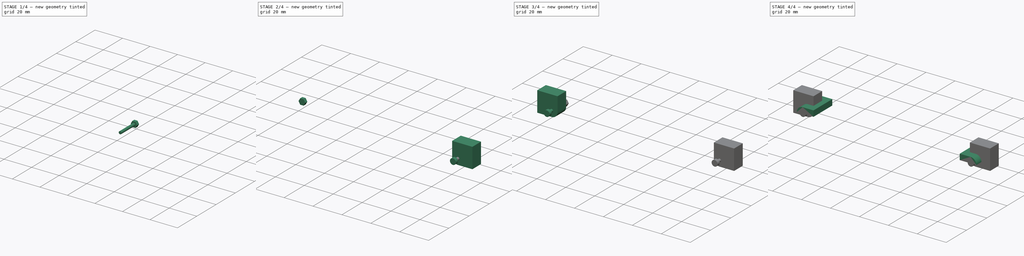
[diagram: build sequence overview — one tinted view per stage of 4, left to right]
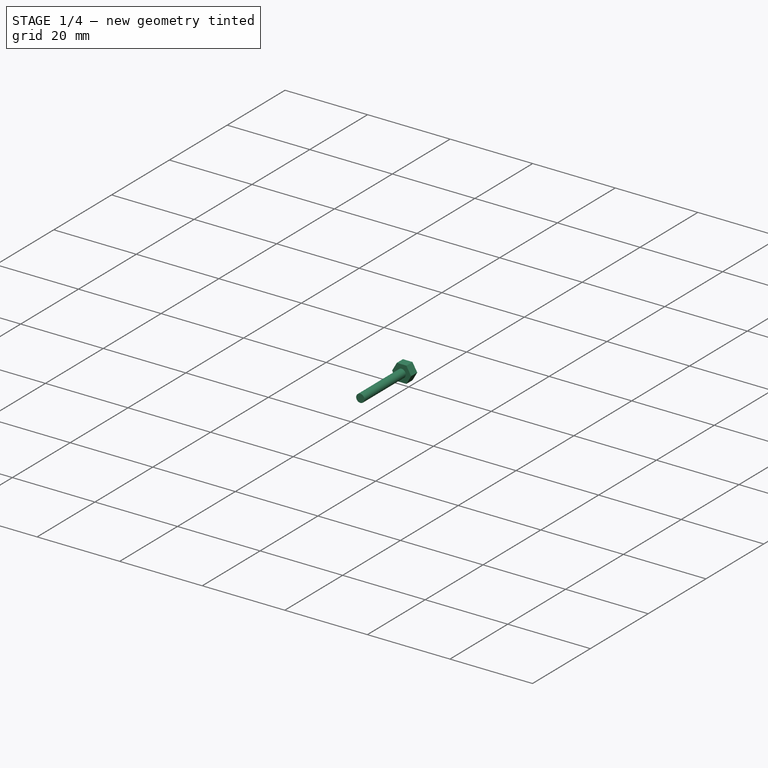
[diagram: stage 1 of 4 — iso view after this stage's code; geometry added in this stage tinted green]
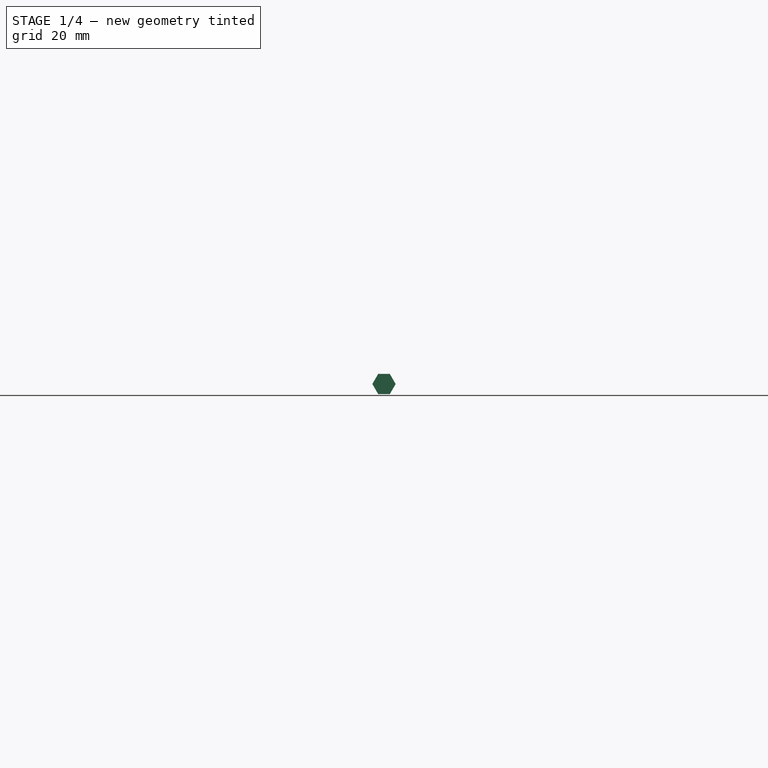
[diagram: stage 1 of 4 — front view after this stage's code; geometry added in this stage tinted green]
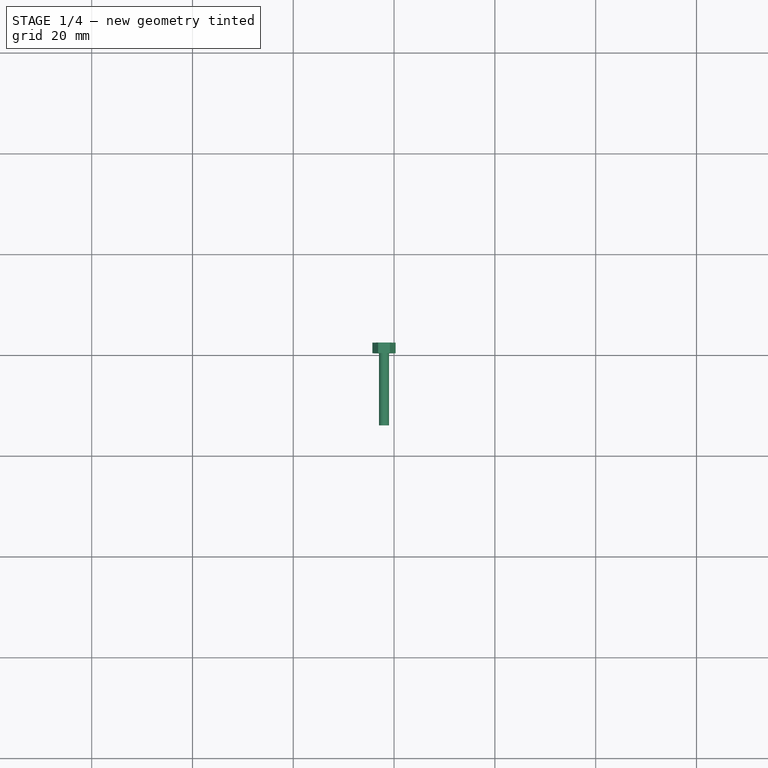
[diagram: stage 1 of 4 — top view after this stage's code; geometry added in this stage tinted green]
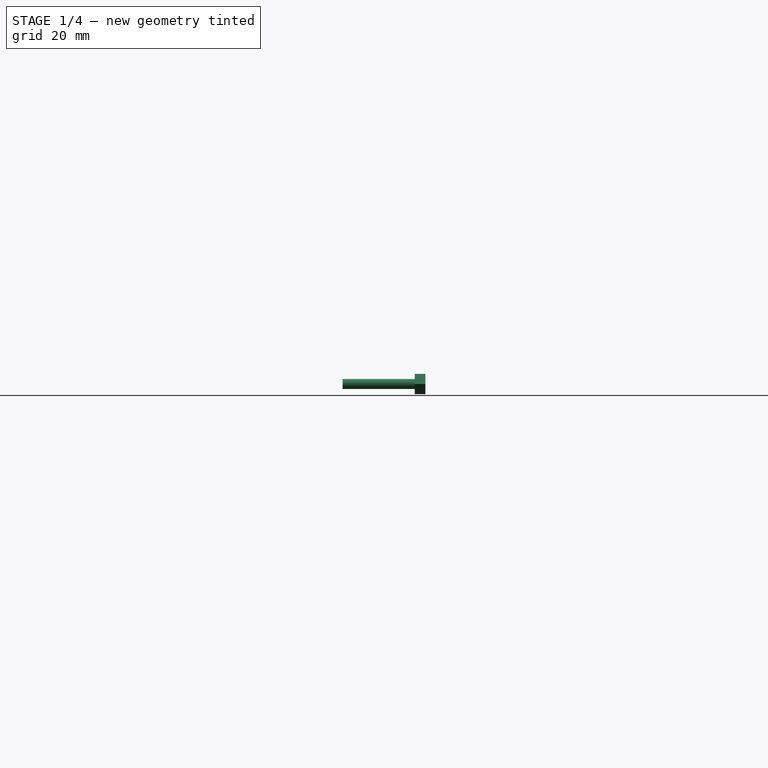
[diagram: stage 1 of 4 — right view after this stage's code; geometry added in this stage tinted green]
FCSTD DOCUMENT  (FreeCAD 0.18R15969 (Git))
Label: feature_latch
License: All rights reserved
LicenseURL: http://en.wikipedia.org/wiki/All_rights_reserved
objects: Sketcher::SketchObject×10, PartDesign::Pad×10, PartDesign::Body×4
note: 34 computed .brp shape members not serialized (recipe doc carries the construction recipe); baked Part::Feature solids carry a one-line shape summary decoded from their .brp

FEATURE [PartDesign::Body] Body002  label="feature_sidelatch_sub_A"
  Group = -> [Sketch002,Pad002,Sketch003,Pad003,Sketch004,Pad004,Sketch005,Pad005]
  Origin = -> Origin002
  Tip = -> Pad005
FEATURE [Sketcher::SketchObject] Sketch007
  AttachmentOffset = pos=(0,0,-2.5) rot=(0,0,1;0rad)
  MapMode = 5
  Placement = pos=(0,2.5,6e-16) rot=(1,0,0;1.5708rad)
  Support = -> [XZ_Plane003]
  sketch-geometry (7):
    g0: LineSegment StartX=59.1547 StartY=-2 StartZ=0 EndX=60.3094 EndY=-2e-16 EndZ=0
    g1: LineSegment StartX=60.3094 StartY=-2e-16 StartZ=0 EndX=59.1547 EndY=2 EndZ=0
    g2: LineSegment StartX=59.1547 StartY=2 StartZ=0 EndX=56.8453 EndY=2 EndZ=0
    g3: LineSegment StartX=56.8453 StartY=2 StartZ=0 EndX=55.6906 EndY=-2e-16 EndZ=0
    g4: LineSegment StartX=55.6906 StartY=-1e-16 StartZ=0 EndX=56.8453 EndY=-2 EndZ=0
    g5: LineSegment StartX=56.8453 StartY=-2 StartZ=0 EndX=59.1547 EndY=-2 EndZ=0
    g6: Circle [constr] CenterX=58 CenterY=0 CenterZ=0 NormalX=0 NormalY=0 NormalZ=1 AngleXU=0 Radius=2.3094
  constraints (17):
    c: Coincident(g0,g1)
    c: Coincident(g1,g2)
    c: Coincident(g2,g3)
    c: Coincident(g3,g4)
    c: Coincident(g4,g5)
    c: Coincident(g5,g0)
    c: Equal(g0, g1-g5) x5
    c: PointOnObject(g0,g6)
    c: PointOnObject(g1,g6)
    c: PointOnObject(g2,g6)
    c: PointOnObject(g3,g6)
    c: PointOnObject(g4,g6)
    c: PointOnObject(g5,g6)
    c: PointOnObject(g6,g-1)
    c: Horizontal(g2)
    c: DistanceY(g4,g2) = 4
    c: DistanceX(g-1,g6) = 58
FEATURE [PartDesign::Pad] Pad006
  Length = 2.1
  Length2 = 100
  Placement = pos=(0,0,0) rot=(1,0,0;1.5708rad)
  Profile = -> Sketch007
  Type = 0
FEATURE [Sketcher::SketchObject] Sketch008
  MapMode = 5
  Placement = pos=(0,0.4,1e-16) rot=(1,0,0;1.5708rad)
  Support = -> [Pad006]
  sketch-geometry (1):
    g0: Circle CenterX=58 CenterY=0 CenterZ=0 NormalX=0 NormalY=0 NormalZ=1 AngleXU=0 Radius=1
  constraints (3):
    c: PointOnObject(g0,g-1)
    c: Diameter(g0) = 2
    c: DistanceX(g-1,g0) = 58
FEATURE [PartDesign::Pad] Pad008
  BaseFeature = -> Pad006
  Length = 14.3
  Length2 = 100
  Placement = pos=(0,0,0) rot=(1,0,0;1.5708rad)
  Profile = -> Sketch008
  Type = 0
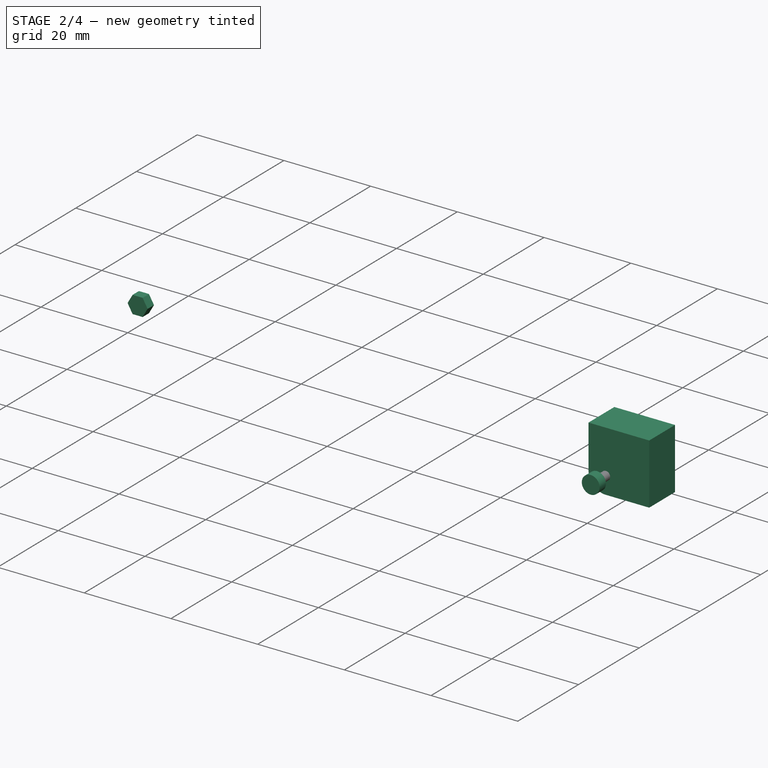
[diagram: stage 2 of 4 — iso view after this stage's code; geometry added in this stage tinted green]
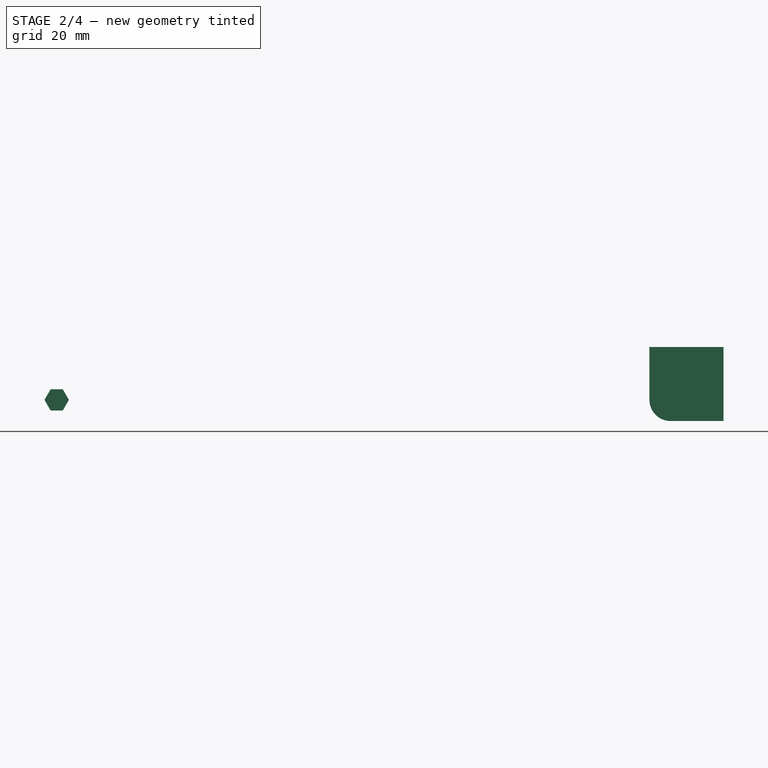
[diagram: stage 2 of 4 — front view after this stage's code; geometry added in this stage tinted green]
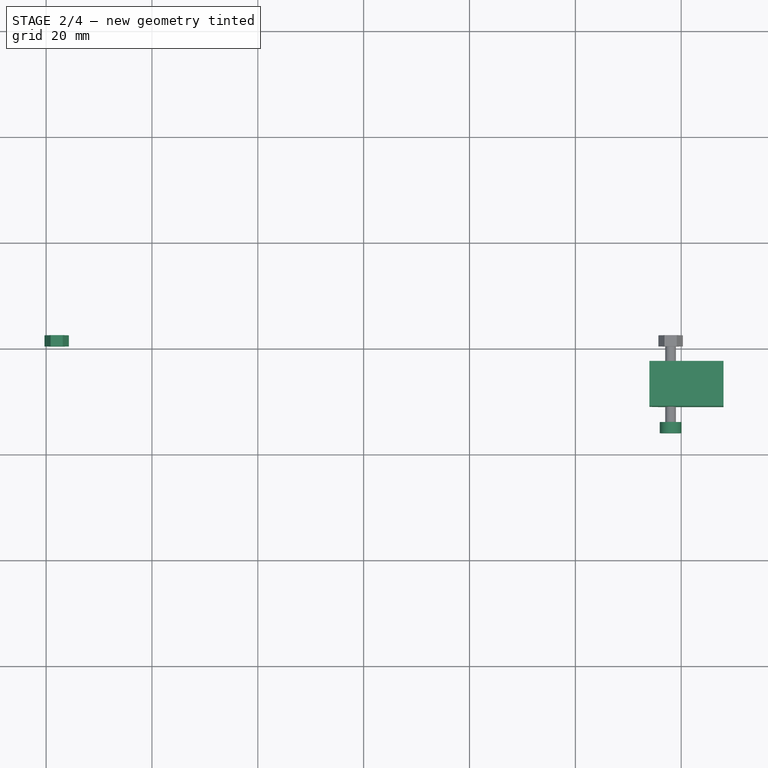
[diagram: stage 2 of 4 — top view after this stage's code; geometry added in this stage tinted green]
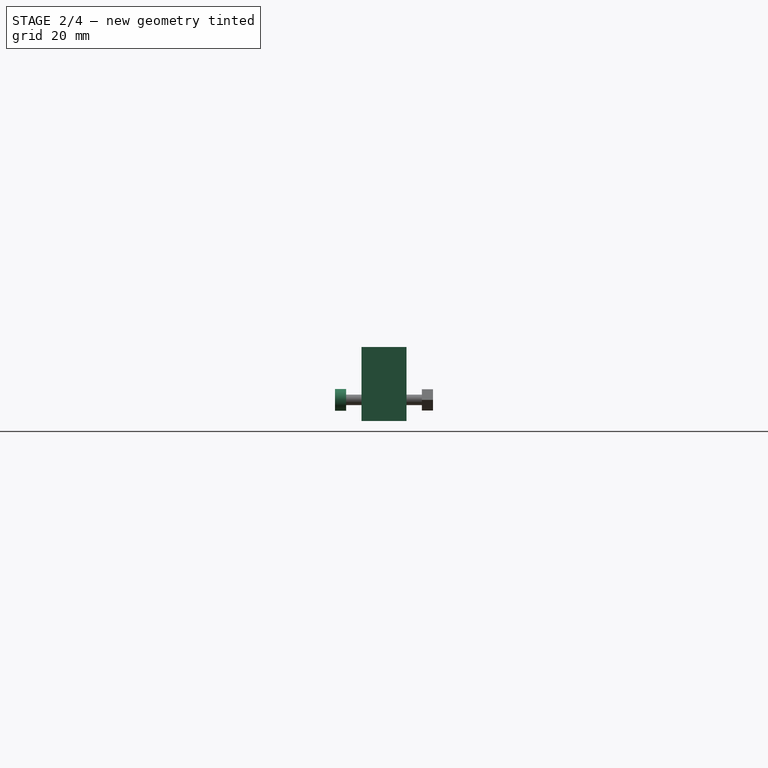
[diagram: stage 2 of 4 — right view after this stage's code; geometry added in this stage tinted green]
FEATURE [PartDesign::Body] Body001  label="feature_sidelatch_add_B"
  Group = -> [Sketch001,Pad001]
  Origin = -> Origin001
  Tip = -> Pad001
FEATURE [Sketcher::SketchObject] Sketch002
  AttachmentOffset = pos=(0,0,-2.5) rot=(0,0,1;0rad)
  MapMode = 5
  Placement = pos=(0,2.5,6e-16) rot=(1,0,0;1.5708rad)
  Support = -> [XZ_Plane002]
  sketch-geometry (7):
    g0: LineSegment StartX=-56.8453 StartY=-2 StartZ=0 EndX=-55.6906 EndY=-9e-16 EndZ=0
    g1: LineSegment StartX=-55.6906 StartY=-8e-16 StartZ=0 EndX=-56.8453 EndY=2 EndZ=0
    g2: LineSegment StartX=-56.8453 StartY=2 StartZ=0 EndX=-59.1547 EndY=2 EndZ=0
    g3: LineSegment StartX=-59.1547 StartY=2 StartZ=0 EndX=-60.3094 EndY=-9e-16 EndZ=0
    g4: LineSegment StartX=-60.3094 StartY=-7e-16 StartZ=0 EndX=-59.1547 EndY=-2 EndZ=0
    g5: LineSegment StartX=-59.1547 StartY=-2 StartZ=0 EndX=-56.8453 EndY=-2 EndZ=0
    g6: Circle [constr] CenterX=-58 CenterY=0 CenterZ=0 NormalX=0 NormalY=0 NormalZ=1 AngleXU=0 Radius=2.3094
  constraints (17):
    c: Coincident(g0,g1)
    c: Coincident(g1,g2)
    c: Coincident(g2,g3)
    c: Coincident(g3,g4)
    c: Coincident(g4,g5)
    c: Coincident(g5,g0)
    c: Equal(g0, g1-g5) x5
    c: PointOnObject(g0,g6)
    c: PointOnObject(g1,g6)
    c: PointOnObject(g2,g6)
    c: PointOnObject(g3,g6)
    c: PointOnObject(g4,g6)
    c: PointOnObject(g5,g6)
    c: PointOnObject(g6,g-1)
    c: DistanceX(g6,g-1) = 58
    c: Horizontal(g2)
    c: DistanceY(g4,g2) = 4
FEATURE [PartDesign::Pad] Pad002
  Length = 2.1
  Length2 = 100
  Placement = pos=(0,0,0) rot=(1,0,0;1.5708rad)
  Profile = -> Sketch002
  Type = 0
FEATURE [Sketcher::SketchObject] Sketch006
  MapMode = 5
  Placement = pos=(0,-13.9,-2.7e-15) rot=(1,0,0;1.5708rad)
  Support = -> [Pad008]
  sketch-geometry (1):
    g0: Circle CenterX=58 CenterY=0 CenterZ=0 NormalX=0 NormalY=0 NormalZ=1 AngleXU=0 Radius=2.05
  constraints (3):
    c: PointOnObject(g0,g-1)
    c: Diameter(g0) = 4.1
    c: DistanceX(g0,g-1) = -58
FEATURE [PartDesign::Pad] Pad009
  BaseFeature = -> Pad008
  Length = 2.1
  Length2 = 100
  Placement = pos=(0,0,0) rot=(1,0,0;1.5708rad)
  Profile = -> Sketch006
  Type = 0
FEATURE [Sketcher::SketchObject] Sketch009
  AttachmentOffset = pos=(0,0,2.5) rot=(0,0,1;0rad)
  MapMode = 5
  Placement = pos=(0,-2.5,-6e-16) rot=(1,0,0;1.5708rad)
  Support = -> [XZ_Plane003]
  sketch-geometry (5):
    g0: LineSegment StartX=54 StartY=10 StartZ=0 EndX=68 EndY=10 EndZ=0
    g1: LineSegment StartX=68 StartY=10 StartZ=0 EndX=68 EndY=-4 EndZ=0
    g2: LineSegment StartX=68 StartY=-4 StartZ=0 EndX=58 EndY=-4 EndZ=0
    g3: LineSegment StartX=54 StartY=5e-16 StartZ=0 EndX=54 EndY=10 EndZ=0
    g4: ArcOfCircle CenterX=58 CenterY=0 CenterZ=0 NormalX=0 NormalY=0 NormalZ=1 AngleXU=0 Radius=4 StartAngle=3.14159 EndAngle=4.71239
  constraints (14):
    c: Coincident(g0,g1)
    c: Coincident(g1,g2)
    c: Coincident(g3,g0)
    c: Horizontal(g0)
    c: Horizontal(g2)
    c: Vertical(g1)
    c: Vertical(g3)
    c: Tangent(g3,g4) = 1.5708
    c: Tangent(g2,g4) = 1.5708
    c: Radius(g4) = 4
    c: PointOnObject(g4,g-1)
    c: Equal(g3,g2)
    c: DistanceY(g3,g3) = 10
    c: DistanceX(g-1,g4) = 58
FEATURE [PartDesign::Pad] Pad007
  BaseFeature = -> Pad009
  Length = 8.5
  Length2 = 100
  Placement = pos=(0,0,0) rot=(1,0,0;1.5708rad)
  Profile = -> Sketch009
  Type = 0
FEATURE [PartDesign::Body] Body003  label="feature_sidelatch_sub_B"
  Group = -> [Sketch007,Pad006,Sketch008,Pad008,Sketch006,Pad009,Sketch009,Pad007]
  Origin = -> Origin003
  Tip = -> Pad007
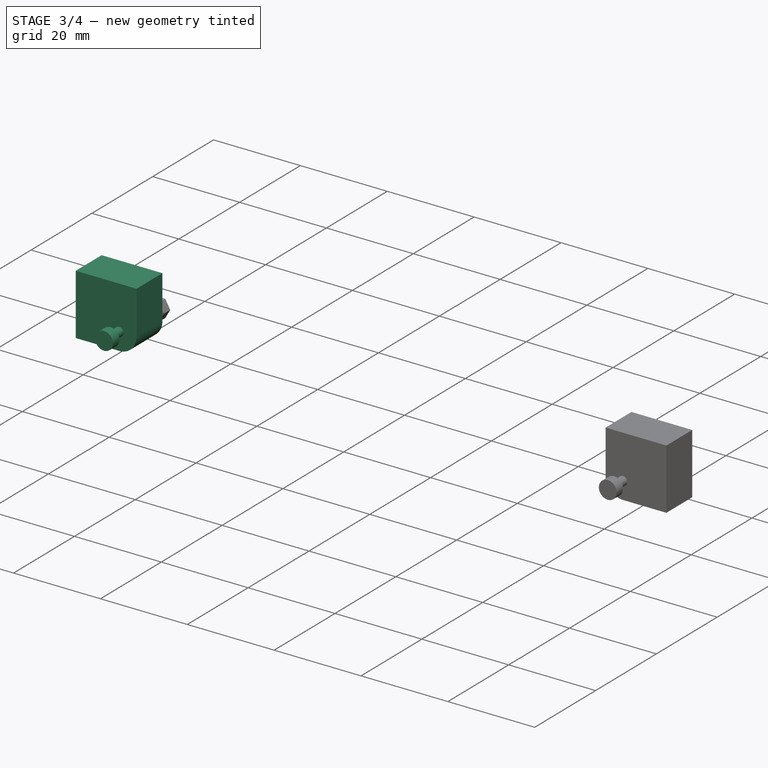
[diagram: stage 3 of 4 — iso view after this stage's code; geometry added in this stage tinted green]
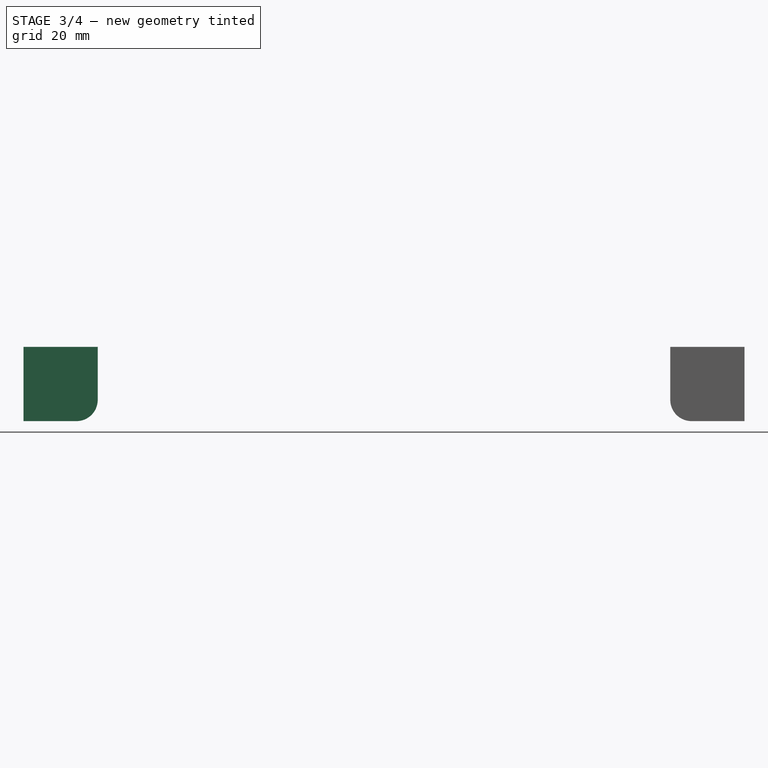
[diagram: stage 3 of 4 — front view after this stage's code; geometry added in this stage tinted green]
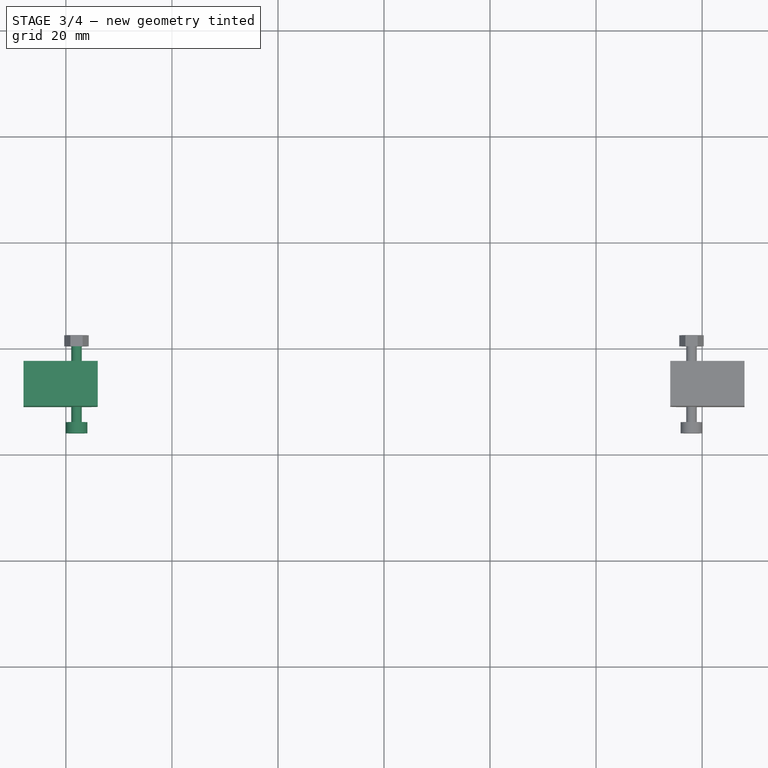
[diagram: stage 3 of 4 — top view after this stage's code; geometry added in this stage tinted green]
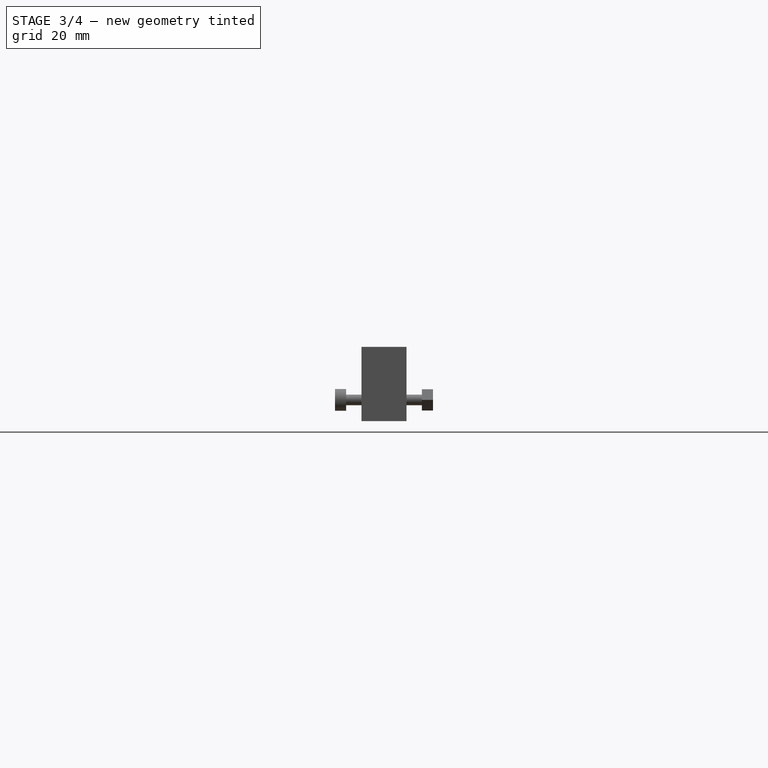
[diagram: stage 3 of 4 — right view after this stage's code; geometry added in this stage tinted green]
FEATURE [Sketcher::SketchObject] Sketch003
  MapMode = 5
  Placement = pos=(0,0.4,1e-16) rot=(1,0,0;1.5708rad)
  Support = -> [Pad002]
  sketch-geometry (1):
    g0: Circle CenterX=-58 CenterY=0 CenterZ=0 NormalX=0 NormalY=0 NormalZ=1 AngleXU=0 Radius=1
  constraints (3):
    c: PointOnObject(g0,g-1)
    c: DistanceX(g0,g-1) = 58
    c: Diameter(g0) = 2
FEATURE [PartDesign::Pad] Pad003
  BaseFeature = -> Pad002
  Length = 14.3
  Length2 = 100
  Placement = pos=(0,0,0) rot=(1,0,0;1.5708rad)
  Profile = -> Sketch003
  Type = 0
FEATURE [Sketcher::SketchObject] Sketch004
  MapMode = 5
  Placement = pos=(0,-13.9,-2.7e-15) rot=(1,0,0;1.5708rad)
  Support = -> [Pad003]
  sketch-geometry (1):
    g0: Circle CenterX=-58 CenterY=0 CenterZ=0 NormalX=0 NormalY=0 NormalZ=1 AngleXU=0 Radius=2.05
  constraints (3):
    c: PointOnObject(g0,g-1)
    c: Diameter(g0) = 4.1
    c: DistanceX(g0,g-1) = 58
FEATURE [PartDesign::Pad] Pad004
  BaseFeature = -> Pad003
  Length = 2.1
  Length2 = 100
  Placement = pos=(0,0,0) rot=(1,0,0;1.5708rad)
  Profile = -> Sketch004
  Type = 0
FEATURE [Sketcher::SketchObject] Sketch005
  AttachmentOffset = pos=(0,0,2.5) rot=(0,0,1;0rad)
  MapMode = 5
  Placement = pos=(0,-2.5,-6e-16) rot=(1,0,0;1.5708rad)
  Support = -> [XZ_Plane002]
  sketch-geometry (5):
    g0: LineSegment StartX=-68 StartY=10 StartZ=0 EndX=-54 EndY=10 EndZ=0
    g1: LineSegment StartX=-54 StartY=10 StartZ=0 EndX=-54 EndY=8.029e-13 EndZ=0
    g2: LineSegment StartX=-58 StartY=-4 StartZ=0 EndX=-68 EndY=-4 EndZ=0
    g3: LineSegment StartX=-68 StartY=-4 StartZ=0 EndX=-68 EndY=10 EndZ=0
    g4: ArcOfCircle CenterX=-58 CenterY=0 CenterZ=0 NormalX=0 NormalY=0 NormalZ=1 AngleXU=0 Radius=4 StartAngle=4.71239 EndAngle=6.28319
  constraints (14):
    c: Coincident(g0,g1)
    c: Coincident(g2,g3)
    c: Coincident(g3,g0)
    c: Horizontal(g0)
    c: Horizontal(g2)
    c: Vertical(g1)
    c: Vertical(g3)
    c: Tangent(g2,g4) = 1.5708
    c: Tangent(g1,g4) = 1.5708
    c: PointOnObject(g4,g-1)
    c: DistanceX(g4,g-1) = 58
    c: DistanceY(g2,g-1) = 4
    c: Equal(g1,g2)
    c: DistanceY(g1,g1) = 10
FEATURE [PartDesign::Pad] Pad005
  BaseFeature = -> Pad004
  Length = 8.5
  Length2 = 100
  Placement = pos=(0,0,0) rot=(1,0,0;1.5708rad)
  Profile = -> Sketch005
  Type = 0
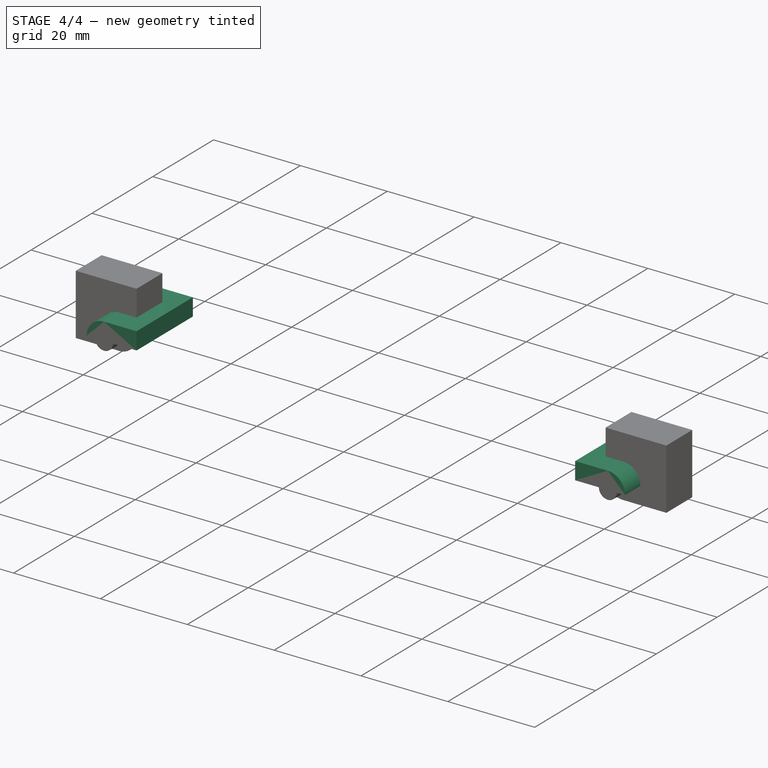
[diagram: stage 4 of 4 — iso view after this stage's code; geometry added in this stage tinted green]
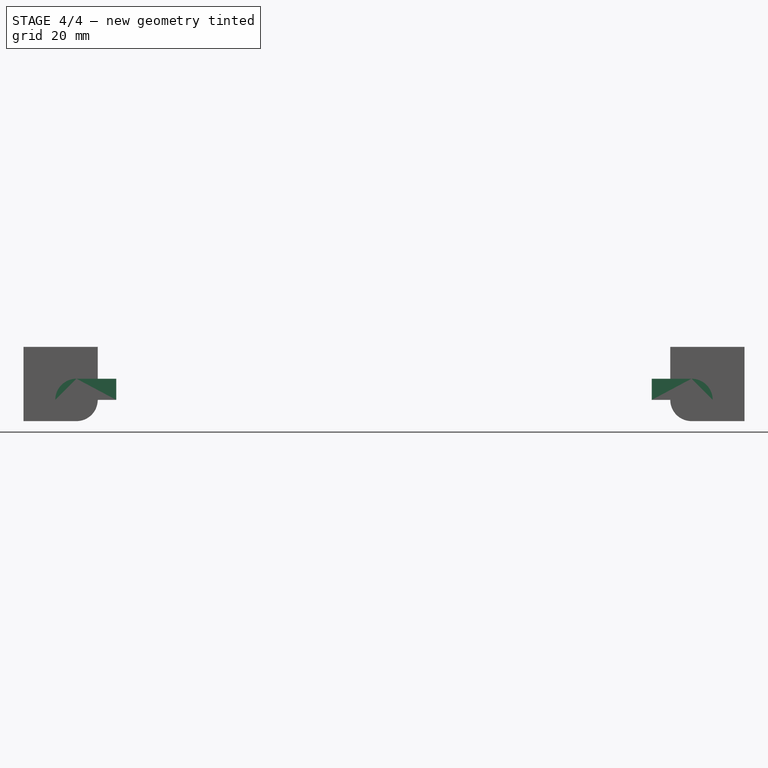
[diagram: stage 4 of 4 — front view after this stage's code; geometry added in this stage tinted green]
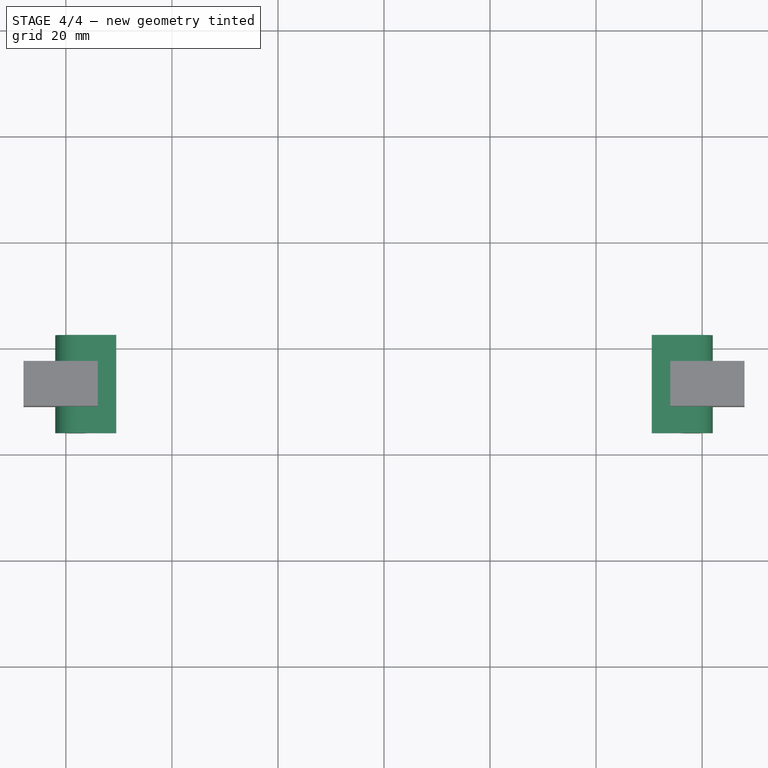
[diagram: stage 4 of 4 — top view after this stage's code; geometry added in this stage tinted green]
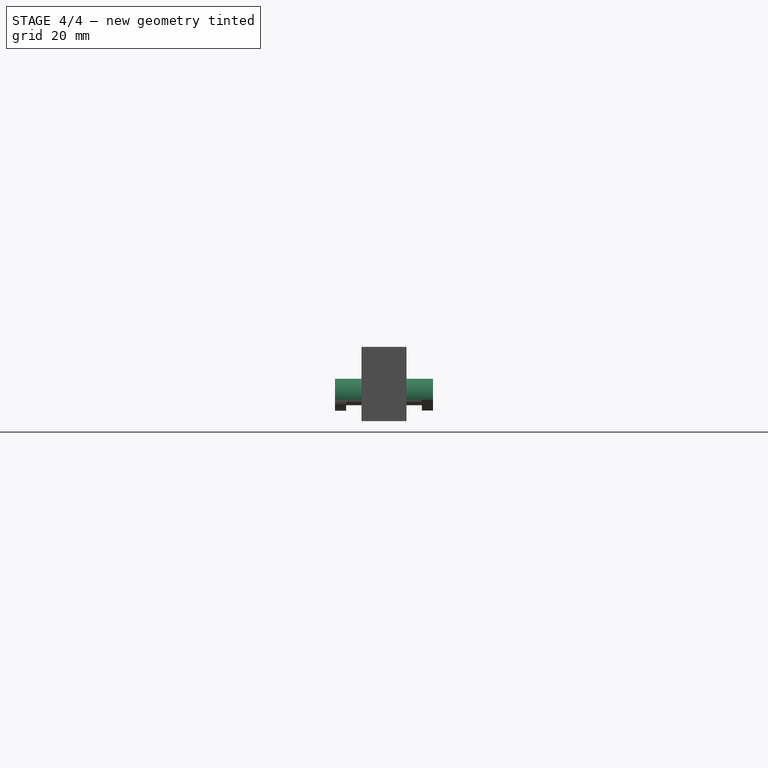
[diagram: stage 4 of 4 — right view after this stage's code; geometry added in this stage tinted green]
FEATURE [Sketcher::SketchObject] Sketch
  AttachmentOffset = pos=(0,0,-2.5) rot=(0,0,1;0rad)
  MapMode = 5
  Placement = pos=(0,2.5,-6e-16) rot=(1,0,0;1.5708rad)
  Support = -> [XZ_Plane]
  sketch-geometry (11):
    g0: ArcOfCircle CenterX=-58 CenterY=0 CenterZ=0 NormalX=0 NormalY=0 NormalZ=1 AngleXU=0 Radius=4 StartAngle=1.5708 EndAngle=3.14159
    g1: LineSegment StartX=-58 StartY=4 StartZ=0 EndX=-50.5 EndY=4 EndZ=0
    g2: LineSegment StartX=-62 StartY=5e-16 StartZ=0 EndX=-50.5 EndY=5e-16 EndZ=0
    g3: LineSegment StartX=-50.5 StartY=4 StartZ=0 EndX=-50.5 EndY=4e-16 EndZ=0
    g4: ArcOfCircle [constr] CenterX=58 CenterY=0 CenterZ=0 NormalX=0 NormalY=0 NormalZ=1 AngleXU=0 Radius=4 StartAngle=0 EndAngle=1.5708
    g5: LineSegment [constr] StartX=50.5 StartY=4 StartZ=0 EndX=58 EndY=4 EndZ=0
    g6: LineSegment [constr] StartX=-50.5 StartY=4 StartZ=0 EndX=0 EndY=4 EndZ=0
    g7: LineSegment [constr] StartX=0 StartY=4 StartZ=0 EndX=50.5 EndY=4 EndZ=0
    g8: LineSegment StartX=62 StartY=0 StartZ=0 EndX=62 EndY=-3.34086e-11 EndZ=0
    g9: LineSegment [constr] StartX=62 StartY=-3.34086e-11 StartZ=0 EndX=50.5 EndY=-3.34086e-11 EndZ=0
    g10: LineSegment [constr] StartX=50.5 StartY=-3.34086e-11 StartZ=0 EndX=50.5 EndY=4 EndZ=0
  constraints (31):
    c: PointOnObject(g0,g-1)
    c: PointOnObject(g0,g-1)
    c: Radius(g0) = 4
    c: Tangent(g1,g0) = 1.5708
    c: Horizontal(g1)
    c: DistanceX(g0,g-1) = 62
    c: DistanceX(g1,g-1) = 50.5
    c: Coincident(g2,g0)
    c: Horizontal(g2)
    c: Coincident(g3,g1)
    c: Coincident(g3,g2)
    c: Vertical(g3)
    c: PointOnObject(g4,g-1)
    c: PointOnObject(g4,g-1)
    c: Tangent(g5,g4) = 1.5708
    c: Horizontal(g5)
    c: Equal(g1,g5)
    c: Equal(g4,g0)
    c: Coincident(g1,g6)
    c: Horizontal(g6)
    c: Coincident(g6,g7)
    c: Coincident(g7,g5)
    c: Equal(g6,g7)
    c: PointOnObject(g6,g-2)
    c: Tangent(g4,g8) = 1.5708
    c: Coincident(g8,g9)
    c: PointOnObject(g9,g-1)
    c: Horizontal(g9)
    c: Coincident(g9,g10)
    c: Coincident(g10,g5)
    c: Vertical(g10)
FEATURE [PartDesign::Pad] Pad
  Length = 18.5
  Length2 = 100
  Placement = pos=(0,0,0) rot=(1,0,0;1.5708rad)
  Profile = -> Sketch
  Type = 0
FEATURE [PartDesign::Body] Body  label="feature_sidelatch_add_A"
  Group = -> [Sketch,Pad]
  Origin = -> Origin
  Tip = -> Pad
FEATURE [Sketcher::SketchObject] Sketch001
  AttachmentOffset = pos=(0,0,-2.5) rot=(0,0,1;0rad)
  MapMode = 5
  Placement = pos=(0,2.5,6e-16) rot=(1,0,0;1.5708rad)
  Support = -> [XZ_Plane001]
  sketch-geometry (11):
    g0: ArcOfCircle [constr] CenterX=-58 CenterY=0 CenterZ=0 NormalX=0 NormalY=0 NormalZ=1 AngleXU=0 Radius=4 StartAngle=1.5708 EndAngle=3.14159
    g1: LineSegment [constr] StartX=-58 StartY=4 StartZ=0 EndX=-50.5 EndY=4 EndZ=0
    g2: LineSegment [constr] StartX=-62 StartY=4e-16 StartZ=0 EndX=-50.5 EndY=4e-16 EndZ=0
    g3: LineSegment [constr] StartX=-50.5 StartY=4 StartZ=0 EndX=-50.5 EndY=4e-16 EndZ=0
    g4: ArcOfCircle CenterX=58 CenterY=0 CenterZ=0 NormalX=0 NormalY=0 NormalZ=1 AngleXU=0 Radius=4 StartAngle=0 EndAngle=1.5708
    g5: LineSegment StartX=50.5 StartY=4 StartZ=0 EndX=58 EndY=4 EndZ=0
    g6: LineSegment [constr] StartX=-50.5 StartY=4 StartZ=0 EndX=0 EndY=4 EndZ=0
    g7: LineSegment [constr] StartX=0 StartY=4 StartZ=0 EndX=50.5 EndY=4 EndZ=0
    g8: LineSegment StartX=62 StartY=0 StartZ=0 EndX=62 EndY=-3.34086e-11 EndZ=0
    g9: LineSegment StartX=62 StartY=-3.34086e-11 StartZ=0 EndX=50.5 EndY=-3.34086e-11 EndZ=0
    g10: LineSegment StartX=50.5 StartY=-3.34086e-11 StartZ=0 EndX=50.5 EndY=4 EndZ=0
  constraints (31):
    c: PointOnObject(g0,g-1)
    c: PointOnObject(g0,g-1)
    c: Radius(g0) = 4
    c: Tangent(g1,g0) = 1.5708
    c: Horizontal(g1)
    c: DistanceX(g0,g-1) = 62
    c: DistanceX(g1,g-1) = 50.5
    c: Coincident(g2,g0)
    c: Horizontal(g2)
    c: Coincident(g3,g1)
    c: Coincident(g3,g2)
    c: Vertical(g3)
    c: PointOnObject(g4,g-1)
    c: PointOnObject(g4,g-1)
    c: Tangent(g5,g4) = 1.5708
    c: Horizontal(g5)
    c: Equal(g1,g5)
    c: Equal(g4,g0)
    c: Coincident(g1,g6)
    c: Horizontal(g6)
    c: Coincident(g6,g7)
    c: Coincident(g7,g5)
    c: Equal(g6,g7)
    c: PointOnObject(g6,g-2)
    c: Tangent(g4,g8) = 1.5708
    c: Coincident(g8,g9)
    c: PointOnObject(g9,g-1)
    c: Horizontal(g9)
    c: Coincident(g9,g10)
    c: Coincident(g10,g5)
    c: Vertical(g10)
FEATURE [PartDesign::Pad] Pad001
  Length = 18.5
  Length2 = 100
  Placement = pos=(0,0,0) rot=(1,0,0;1.5708rad)
  Profile = -> Sketch001
  Type = 0
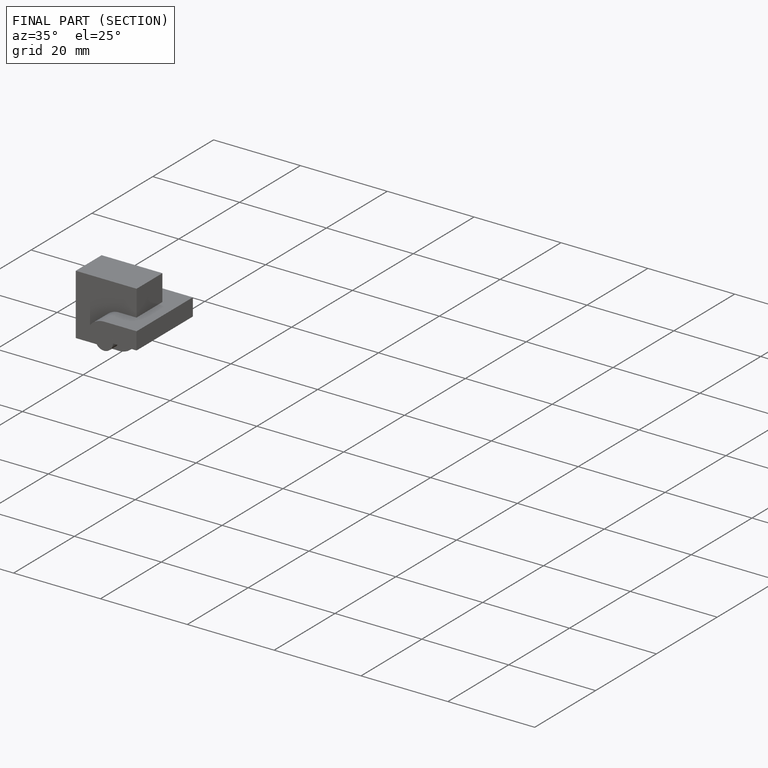
[diagram: finished part — half-section view (interior)]
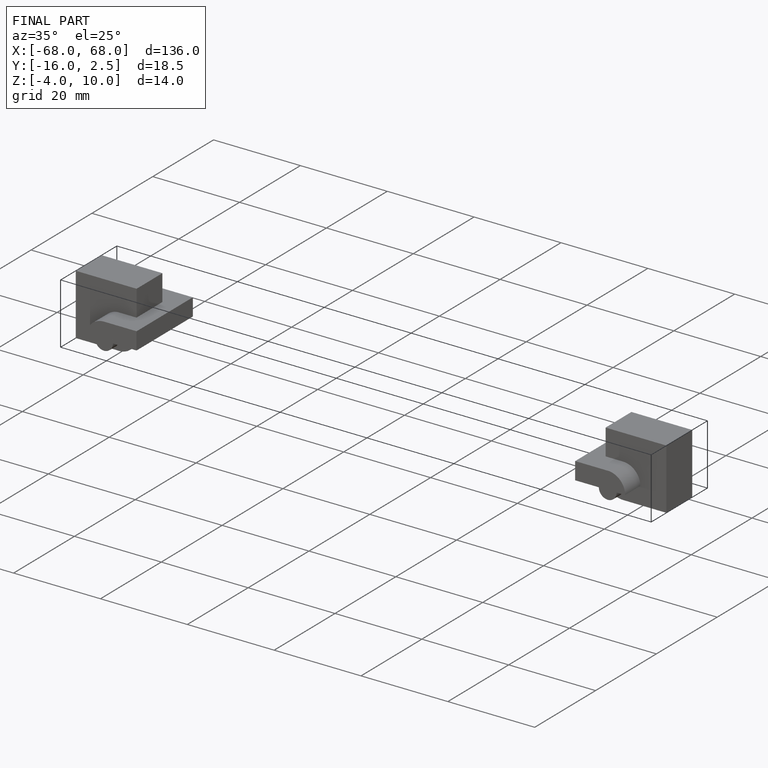
[diagram: finished part — iso view with bounding-box wireframe]
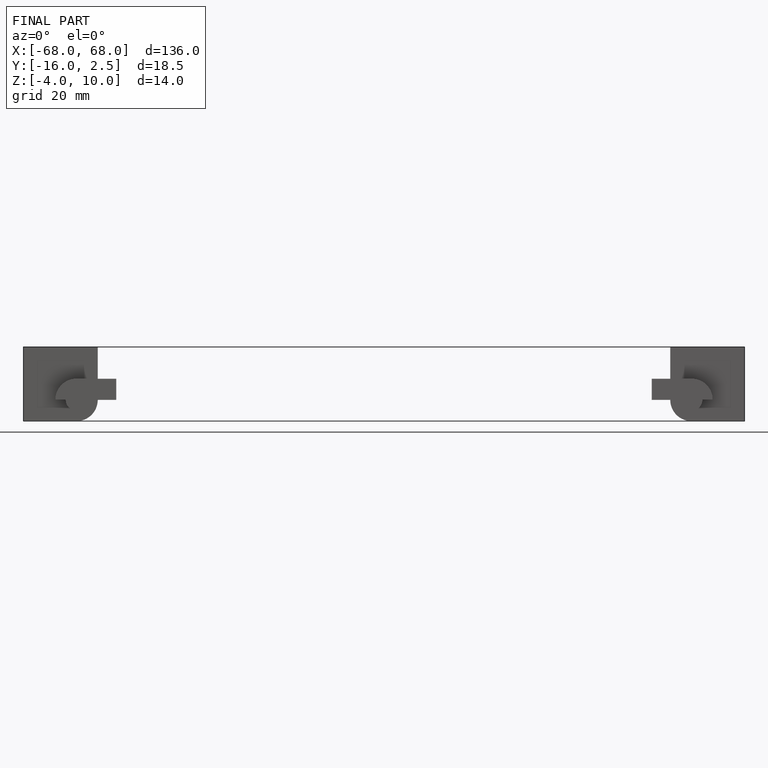
[diagram: finished part — front view with bounding-box wireframe]
